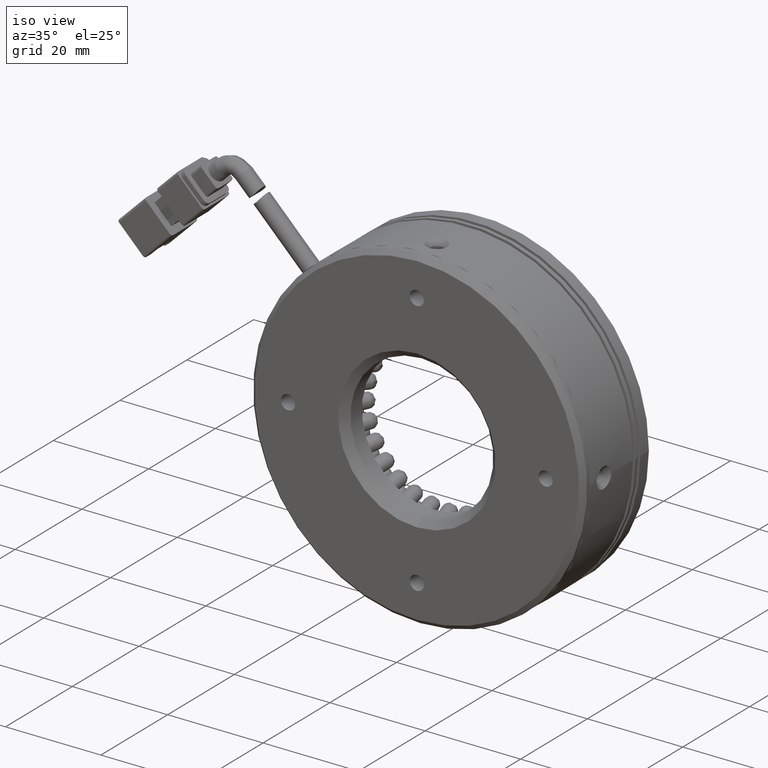
[diagram: clean part render]
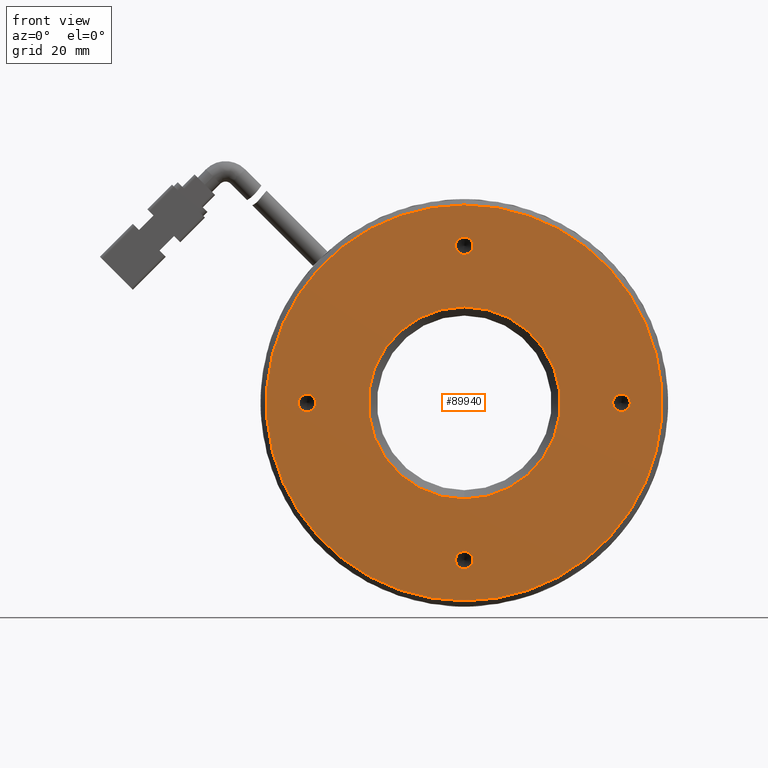
[diagram: tour spotlight — one face highlighted and labeled with its STEP entity id]
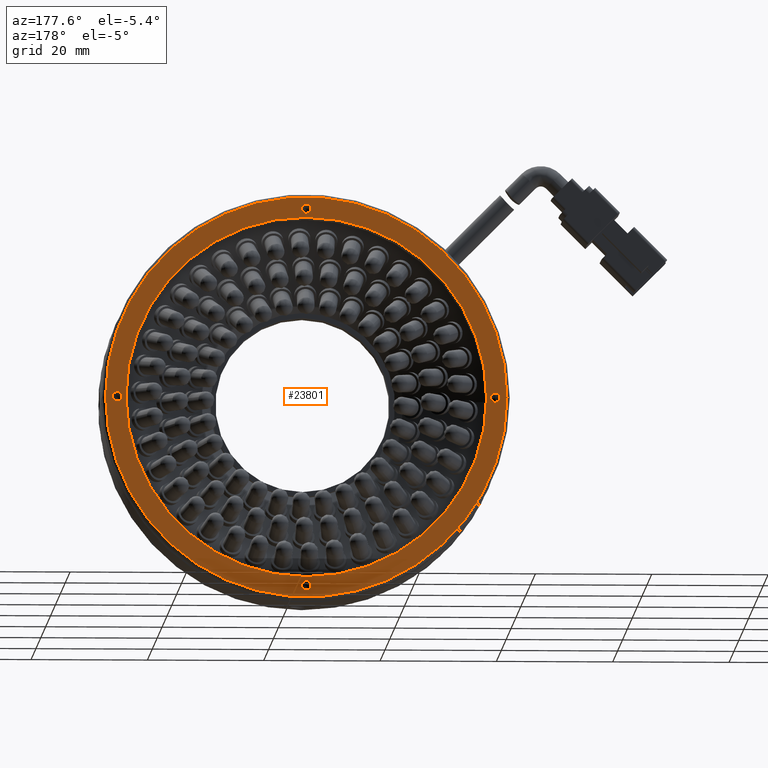
[diagram: tour spotlight — one face highlighted and labeled with its STEP entity id]
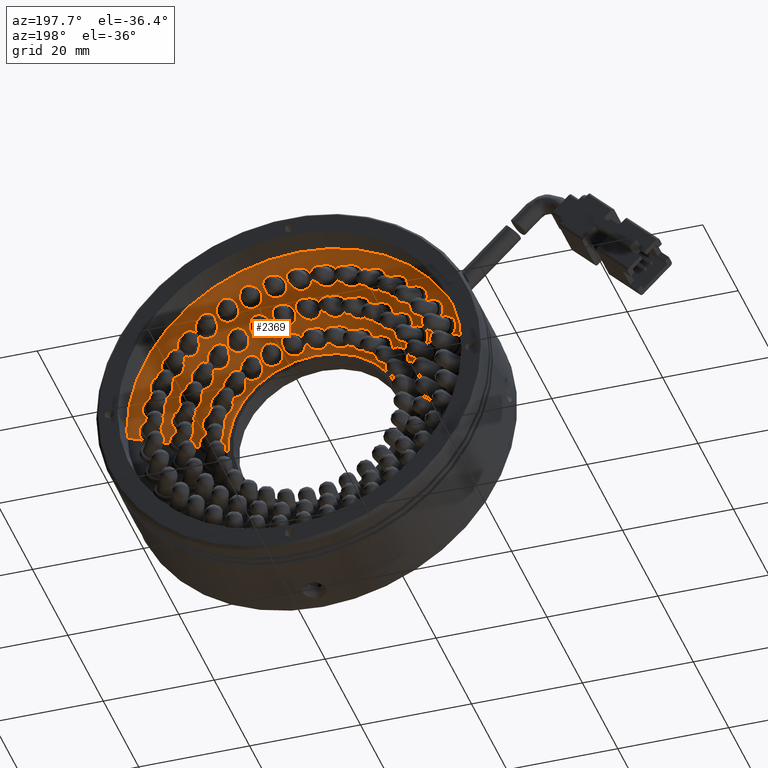
[diagram: tour spotlight — one face highlighted and labeled with its STEP entity id]
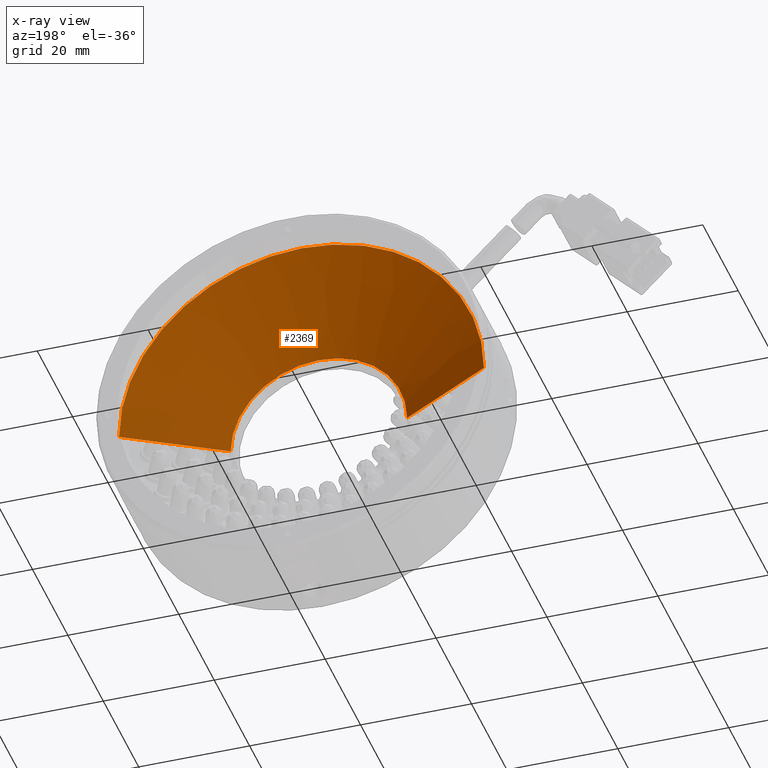
[diagram: x-ray of the same camera — body ghosted, this tour face saturated]
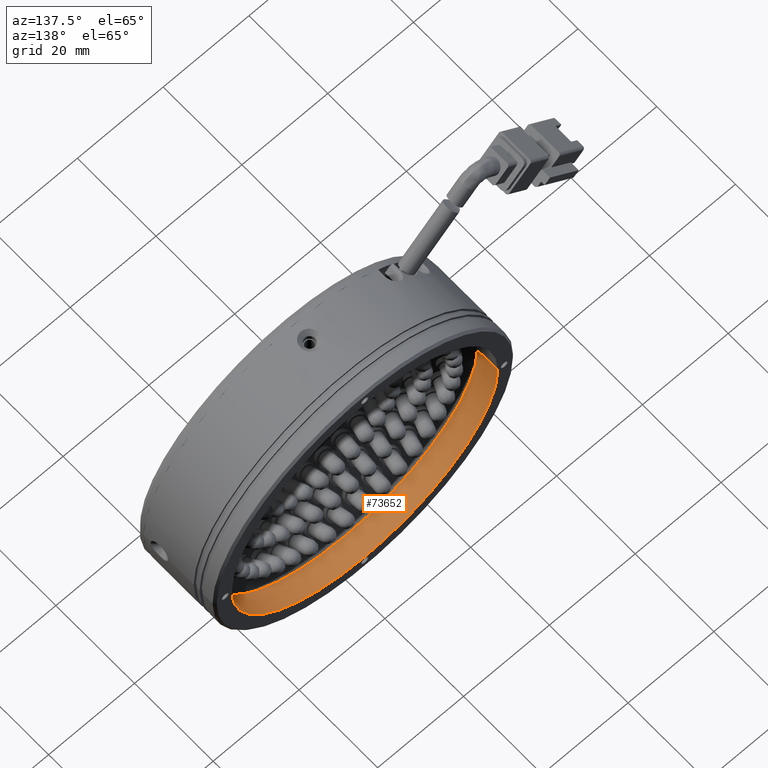
[diagram: tour spotlight — one face highlighted and labeled with its STEP entity id]
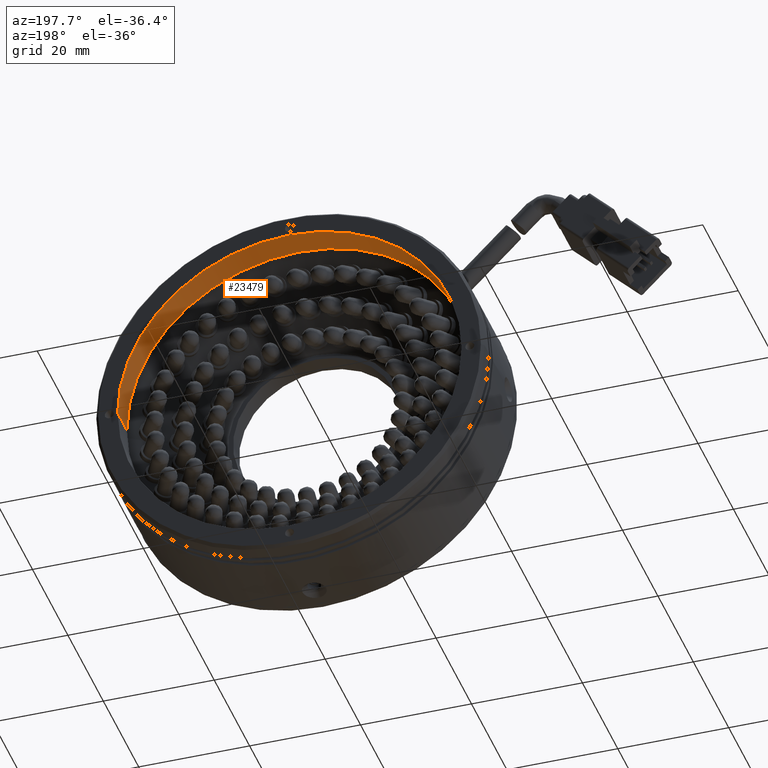
[diagram: tour spotlight — one face highlighted and labeled with its STEP entity id]
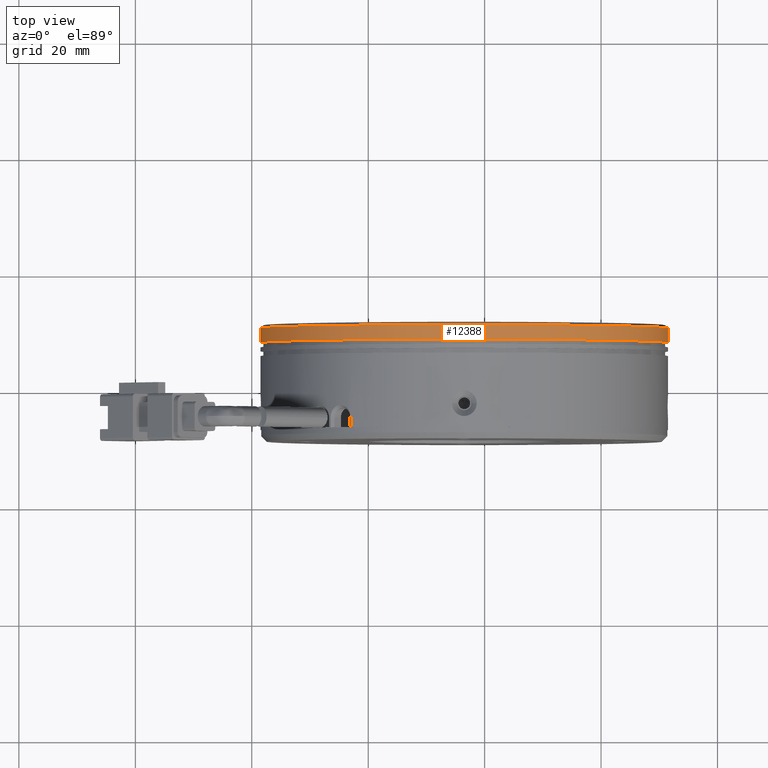
[diagram: tour spotlight — one face highlighted and labeled with its STEP entity id]
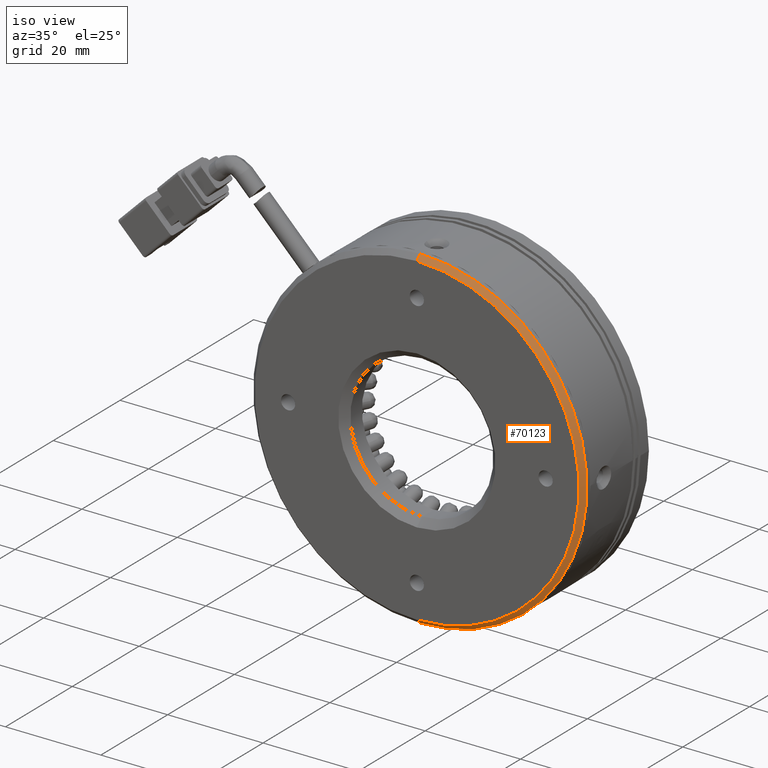
[diagram: tour spotlight — one face highlighted and labeled with its STEP entity id]
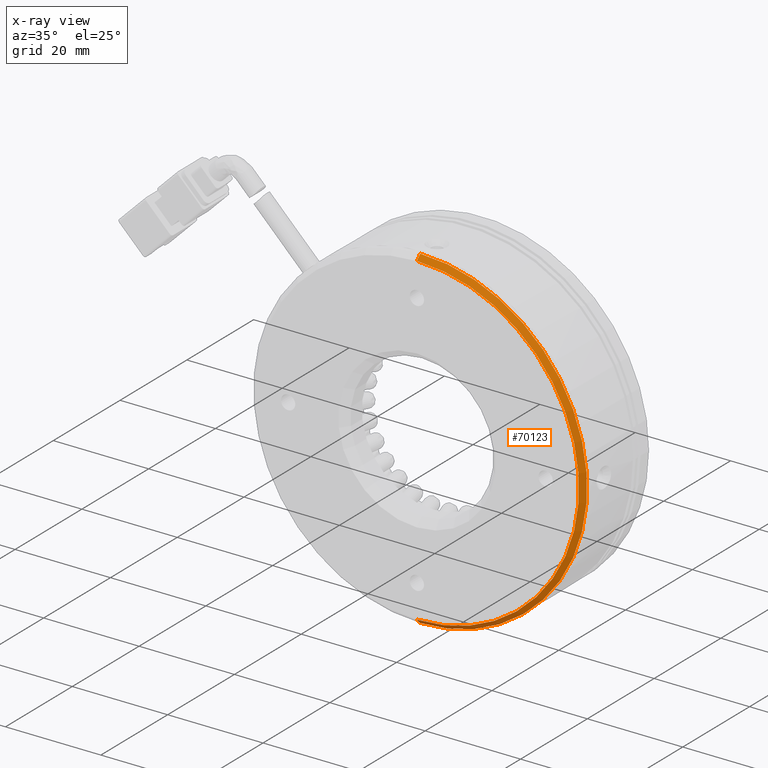
[diagram: x-ray of the same camera — body ghosted, this tour face saturated]
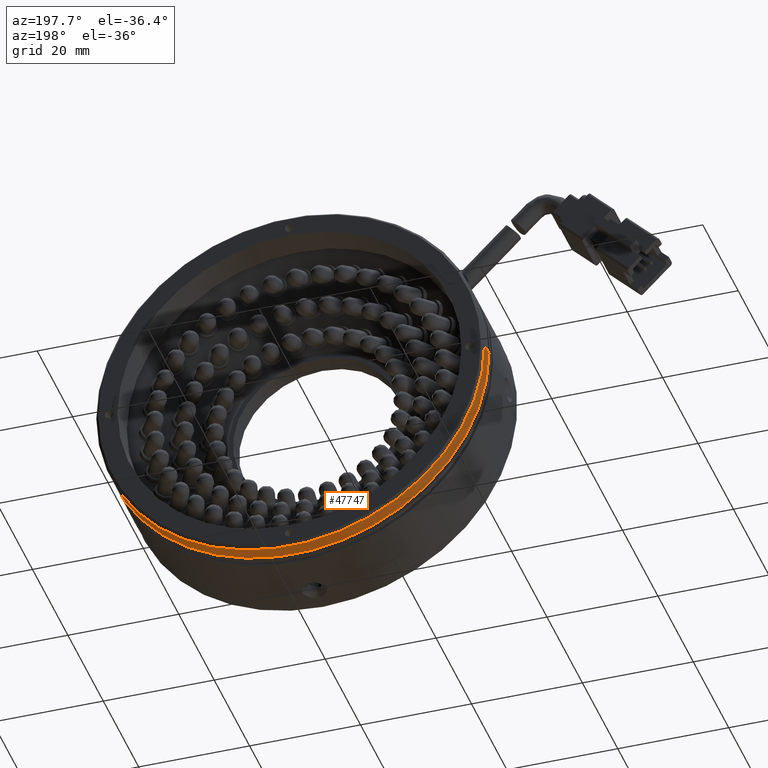
[diagram: tour spotlight — one face highlighted and labeled with its STEP entity id]
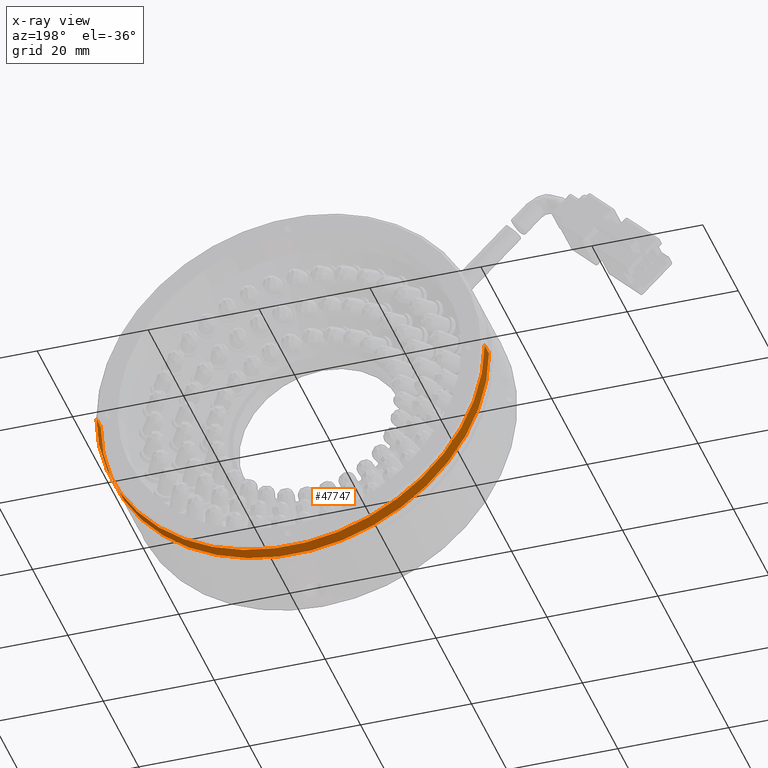
[diagram: x-ray of the same camera — body ghosted, this tour face saturated]
A machine part: a face-by-face anatomy tour. The part has 1954 B-rep faces; the first image is the clean iso view, then the 8 largest visible faces are spotlighted one at a time (largest first), each with its STEP entity span.

Face 1 — front view, entity #89940. In plain terms, the highlighted planar face has unit normal (0, -1, 0).
Definition (entity closure, byte-faithful):
#1160 = AXIS2_PLACEMENT_3D ( 'NONE', #22831, #71733, #29861 ) ;
#2184 = DIRECTION ( 'NONE',  ( 0.0000000000000000000, 0.0000000000000000000, 1.000000000000000000 ) ) ;
#5942 = CARTESIAN_POINT ( 'NONE',  ( -3.499229287090545300, 31.07623868994505800, -27.00000000000000000 ) ) ;
#6325 = EDGE_LOOP ( 'NONE', ( #90336, #84806 ) ) ;
#8530 = ORIENTED_EDGE ( 'NONE', *, *, #90792, .T. ) ;
#9294 = CARTESIAN_POINT ( 'NONE',  ( -30.49922928709055000, 31.07623868994505800, -1.499999999999998700 ) ) ;
#12976 = DIRECTION ( 'NONE',  ( 0.0000000000000000000, 0.0000000000000000000, -1.000000000000000000 ) ) ;
#13225 = AXIS2_PLACEMENT_3D ( 'NONE', #13335, #62259, #20390 ) ;
#13335 = CARTESIAN_POINT ( 'NONE',  ( -3.499229287090545300, 31.07623868994505800, -27.00000000000000000 ) ) ;
#15003 = EDGE_CURVE ( 'NONE', #77611, #71566, #39273, .T. ) ;
#15906 = FACE_BOUND ( 'NONE', #81980, .T. ) ;
#16010 = DIRECTION ( 'NONE',  ( -0.0000000000000000000, 1.000000000000000000, -0.0000000000000000000 ) ) ;
#17169 = EDGE_CURVE ( 'NONE', #86538, #20346, #76574, .T. ) ;
#17216 = DIRECTION ( 'NONE',  ( 0.0000000000000000000, -1.000000000000000000, 0.0000000000000000000 ) ) ;
#18074 = FACE_BOUND ( 'NONE', #54667, .T. ) ;
#18861 = EDGE_CURVE ( 'NONE', #90202, #36358, #21308, .T. ) ;
#18881 = CARTESIAN_POINT ( 'NONE',  ( -3.499229287090538600, 31.07623868994505000, 33.99999999999997900 ) ) ;
#19080 = ORIENTED_EDGE ( 'NONE', *, *, #40027, .T. ) ;
#19380 = CARTESIAN_POINT ( 'NONE',  ( -3.499229287090536400, 31.07623868994505800, 16.50000000000002800 ) ) ;
#19865 = DIRECTION ( 'NONE',  ( 0.0000000000000000000, 1.000000000000000000, 0.0000000000000000000 ) ) ;
#20212 = CARTESIAN_POINT ( 'NONE',  ( -3.499229287090538600, 31.07623868994505800, -16.50000000000002800 ) ) ;
#20346 = VERTEX_POINT ( 'NONE', #41644 ) ;
#20390 = DIRECTION ( 'NONE',  ( 0.0000000000000000000, 0.0000000000000000000, -1.000000000000000000 ) ) ;
#21308 = CIRCLE ( 'NONE', #69875, 16.50000000000002800 ) ;
#21490 = CIRCLE ( 'NONE', #65177, 1.500000000000001300 ) ;
#22831 = CARTESIAN_POINT ( 'NONE',  ( -3.499229287090545300, 31.07623868994505800, 27.00000000000000000 ) ) ;
#23568 = CIRCLE ( 'NONE', #54813, 16.50000000000002800 ) ;
#24273 = ORIENTED_EDGE ( 'NONE', *, *, #34858, .T. ) ;
#25298 = EDGE_LOOP ( 'NONE', ( #19080, #8530 ) ) ;
#26844 = CARTESIAN_POINT ( 'NONE',  ( -30.49922928709055000, 31.07623868994505800, 2.710505431213761100E-017 ) ) ;
#26864 = CARTESIAN_POINT ( 'NONE',  ( 23.50077071290945000, 31.07623868994505800, 1.500000000000001300 ) ) ;
#26934 = EDGE_CURVE ( 'NONE', #36035, #61749, #48530, .T. ) ;
#27255 = ORIENTED_EDGE ( 'NONE', *, *, #18861, .T. ) ;
#28003 = CIRCLE ( 'NONE', #69617, 1.499999999999998700 ) ;
#29034 = EDGE_CURVE ( 'NONE', #71566, #77611, #53093, .T. ) ;
#29661 = CARTESIAN_POINT ( 'NONE',  ( -3.499229287090545300, 31.07623868994505800, 28.50000000000000000 ) ) ;
#29786 = AXIS2_PLACEMENT_3D ( 'NONE', #35681, #84602, #42673 ) ;
#29861 = DIRECTION ( 'NONE',  ( 0.0000000000000000000, 0.0000000000000000000, -1.000000000000000000 ) ) ;
#31521 = EDGE_LOOP ( 'NONE', ( #62108, #90072 ) ) ;
#32043 = CIRCLE ( 'NONE', #36944, 33.99999999999997900 ) ;
#32556 = CARTESIAN_POINT ( 'NONE',  ( -3.499229287090534200, 31.07623868994505000, -33.99999999999997900 ) ) ;
#33864 = DIRECTION ( 'NONE',  ( 0.0000000000000000000, 0.0000000000000000000, -1.000000000000000000 ) ) ;
#33984 = CARTESIAN_POINT ( 'NONE',  ( -3.499229287090538600, 31.07623868994505800, 0.0000000000000000000 ) ) ;
#34181 = CARTESIAN_POINT ( 'NONE',  ( -3.499229287090538600, 31.07623868994505000, 0.0000000000000000000 ) ) ;
#34473 = FACE_OUTER_BOUND ( 'NONE', #25298, .T. ) ;
#34858 = EDGE_CURVE ( 'NONE', #36358, #90202, #23568, .T. ) ;
#35012 = CIRCLE ( 'NONE', #68608, 1.500000000000001300 ) ;
#35681 = CARTESIAN_POINT ( 'NONE',  ( -30.49922928709055000, 31.07623868994505800, 2.710505431213761100E-017 ) ) ;
#36035 = VERTEX_POINT ( 'NONE', #50342 ) ;
#36358 = VERTEX_POINT ( 'NONE', #19380 ) ;
#36455 = CARTESIAN_POINT ( 'NONE',  ( 23.50077071290945000, 31.07623868994505800, 0.0000000000000000000 ) ) ;
#36944 = AXIS2_PLACEMENT_3D ( 'NONE', #85987, #44082, #2184 ) ;
#39273 = CIRCLE ( 'NONE', #50054, 1.500000000000001300 ) ;
#40027 = EDGE_CURVE ( 'NONE', #77948, #63735, #32043, .T. ) ;
#40503 = DIRECTION ( 'NONE',  ( 0.0000000000000000000, 1.000000000000000000, 0.0000000000000000000 ) ) ;
#40997 = DIRECTION ( 'NONE',  ( 0.0000000000000000000, 0.0000000000000000000, -1.000000000000000000 ) ) ;
#41171 = DIRECTION ( 'NONE',  ( 0.0000000000000000000, 0.0000000000000000000, 1.000000000000000000 ) ) ;
#41340 = AXIS2_PLACEMENT_3D ( 'NONE', #34181, #83063, #41171 ) ;
#41644 = CARTESIAN_POINT ( 'NONE',  ( 23.50077071290945000, 31.07623868994505800, -1.500000000000001300 ) ) ;
#42673 = DIRECTION ( 'NONE',  ( 0.0000000000000000000, 0.0000000000000000000, -1.000000000000000000 ) ) ;
#43454 = DIRECTION ( 'NONE',  ( 0.0000000000000000000, 0.0000000000000000000, -1.000000000000000000 ) ) ;
#44082 = DIRECTION ( 'NONE',  ( 0.0000000000000000000, -1.000000000000000000, -0.0000000000000000000 ) ) ;
#44633 = ORIENTED_EDGE ( 'NONE', *, *, #17169, .T. ) ;
#48449 = CARTESIAN_POINT ( 'NONE',  ( -30.49922928709055000, 31.07623868994505800, 1.499999999999998700 ) ) ;
#48530 = CIRCLE ( 'NONE', #13225, 1.500000000000001300 ) ;
#50054 = AXIS2_PLACEMENT_3D ( 'NONE', #61712, #19865, #68773 ) ;
#50342 = CARTESIAN_POINT ( 'NONE',  ( -3.499229287090545300, 31.07623868994505800, -28.50000000000000000 ) ) ;
#50572 = CIRCLE ( 'NONE', #41340, 33.99999999999997900 ) ;
#51951 = VERTEX_POINT ( 'NONE', #9294 ) ;
#53070 = FACE_BOUND ( 'NONE', #57658, .T. ) ;
#53093 = CIRCLE ( 'NONE', #1160, 1.500000000000001300 ) ;
#54667 = EDGE_LOOP ( 'NONE', ( #27255, #24273 ) ) ;
#54792 = ORIENTED_EDGE ( 'NONE', *, *, #62219, .T. ) ;
#54810 = DIRECTION ( 'NONE',  ( 0.0000000000000000000, 1.000000000000000000, 0.0000000000000000000 ) ) ;
#54813 = AXIS2_PLACEMENT_3D ( 'NONE', #57838, #16010, #64903 ) ;
#56265 = ORIENTED_EDGE ( 'NONE', *, *, #26934, .T. ) ;
#56457 = AXIS2_PLACEMENT_3D ( 'NONE', #59053, #17216, #66101 ) ;
#56960 = CARTESIAN_POINT ( 'NONE',  ( -3.499229287090545300, 31.07623868994505800, -25.50000000000000000 ) ) ;
#57658 = EDGE_LOOP ( 'NONE', ( #54792, #44633 ) ) ;
#57838 = CARTESIAN_POINT ( 'NONE',  ( -3.499229287090538600, 31.07623868994505800, 0.0000000000000000000 ) ) ;
#59053 = CARTESIAN_POINT ( 'NONE',  ( -38.49922928709052200, 31.07623868994505800, 0.0000000000000000000 ) ) ;
#60783 = EDGE_CURVE ( 'NONE', #82686, #51951, #66880, .T. ) ;
#61248 = CARTESIAN_POINT ( 'NONE',  ( -3.499229287090545300, 31.07623868994505800, 25.50000000000000000 ) ) ;
#61712 = CARTESIAN_POINT ( 'NONE',  ( -3.499229287090545300, 31.07623868994505800, 27.00000000000000000 ) ) ;
#61749 = VERTEX_POINT ( 'NONE', #56960 ) ;
#62108 = ORIENTED_EDGE ( 'NONE', *, *, #79447, .T. ) ;
#62219 = EDGE_CURVE ( 'NONE', #20346, #86538, #35012, .T. ) ;
#62259 = DIRECTION ( 'NONE',  ( 0.0000000000000000000, 1.000000000000000000, 0.0000000000000000000 ) ) ;
#63735 = VERTEX_POINT ( 'NONE', #32556 ) ;
#64903 = DIRECTION ( 'NONE',  ( 0.0000000000000000000, 0.0000000000000000000, -1.000000000000000000 ) ) ;
#65177 = AXIS2_PLACEMENT_3D ( 'NONE', #5942, #54810, #12976 ) ;
#66101 = DIRECTION ( 'NONE',  ( 0.0000000000000000000, -0.0000000000000000000, -1.000000000000000000 ) ) ;
#66880 = CIRCLE ( 'NONE', #29786, 1.499999999999998700 ) ;
#68608 = AXIS2_PLACEMENT_3D ( 'NONE', #36455, #85364, #43454 ) ;
#68773 = DIRECTION ( 'NONE',  ( 0.0000000000000000000, 0.0000000000000000000, -1.000000000000000000 ) ) ;
#69617 = AXIS2_PLACEMENT_3D ( 'NONE', #26844, #75752, #33864 ) ;
#69875 = AXIS2_PLACEMENT_3D ( 'NONE', #33984, #82882, #40997 ) ;
#71566 = VERTEX_POINT ( 'NONE', #61248 ) ;
#71686 = FACE_BOUND ( 'NONE', #31521, .T. ) ;
#71733 = DIRECTION ( 'NONE',  ( 0.0000000000000000000, 1.000000000000000000, 0.0000000000000000000 ) ) ;
#72860 = PLANE ( 'NONE',  #56457 ) ;
#75752 = DIRECTION ( 'NONE',  ( 0.0000000000000000000, 1.000000000000000000, 0.0000000000000000000 ) ) ;
#76574 = CIRCLE ( 'NONE', #83620, 1.500000000000001300 ) ;
#77611 = VERTEX_POINT ( 'NONE', #29661 ) ;
#77948 = VERTEX_POINT ( 'NONE', #18881 ) ;
#79447 = EDGE_CURVE ( 'NONE', #51951, #82686, #28003, .T. ) ;
#81855 = ORIENTED_EDGE ( 'NONE', *, *, #89627, .T. ) ;
#81980 = EDGE_LOOP ( 'NONE', ( #56265, #81855 ) ) ;
#82400 = CARTESIAN_POINT ( 'NONE',  ( 23.50077071290945000, 31.07623868994505800, 0.0000000000000000000 ) ) ;
#82686 = VERTEX_POINT ( 'NONE', #48449 ) ;
#82882 = DIRECTION ( 'NONE',  ( -0.0000000000000000000, 1.000000000000000000, -0.0000000000000000000 ) ) ;
#83063 = DIRECTION ( 'NONE',  ( 0.0000000000000000000, -1.000000000000000000, -0.0000000000000000000 ) ) ;
#83620 = AXIS2_PLACEMENT_3D ( 'NONE', #82400, #40503, #89466 ) ;
#84602 = DIRECTION ( 'NONE',  ( 0.0000000000000000000, 1.000000000000000000, 0.0000000000000000000 ) ) ;
#84806 = ORIENTED_EDGE ( 'NONE', *, *, #15003, .T. ) ;
#85364 = DIRECTION ( 'NONE',  ( 0.0000000000000000000, 1.000000000000000000, 0.0000000000000000000 ) ) ;
#85987 = CARTESIAN_POINT ( 'NONE',  ( -3.499229287090538600, 31.07623868994505000, 0.0000000000000000000 ) ) ;
#86538 = VERTEX_POINT ( 'NONE', #26864 ) ;
#89466 = DIRECTION ( 'NONE',  ( 0.0000000000000000000, 0.0000000000000000000, -1.000000000000000000 ) ) ;
#89627 = EDGE_CURVE ( 'NONE', #61749, #36035, #21490, .T. ) ;
#89940 = ADVANCED_FACE ( 'NONE', ( #15906, #90293, #53070, #71686, #18074, #34473 ), #72860, .T. ) ;
#90072 = ORIENTED_EDGE ( 'NONE', *, *, #60783, .T. ) ;
#90202 = VERTEX_POINT ( 'NONE', #20212 ) ;
#90293 = FACE_BOUND ( 'NONE', #6325, .T. ) ;
#90336 = ORIENTED_EDGE ( 'NONE', *, *, #29034, .T. ) ;
#90792 = EDGE_CURVE ( 'NONE', #63735, #77948, #50572, .T. ) ;

Face 2 — auxiliary view, entity #23801. In plain terms, the highlighted planar face has unit normal (0, 1, 0).
Definition (entity closure, byte-faithful):
#839 = CIRCLE ( 'NONE', #81366, 31.00000000000000000 ) ;
#1770 = DIRECTION ( 'NONE',  ( -1.000000000000000000, 0.0000000000000000000, -1.942890293093821800E-016 ) ) ;
#2255 = VERTEX_POINT ( 'NONE', #38243 ) ;
#3440 = VERTEX_POINT ( 'NONE', #24920 ) ;
#4519 = AXIS2_PLACEMENT_3D ( 'NONE', #58058, #16250, #65129 ) ;
#4657 = DIRECTION ( 'NONE',  ( -1.000000000000000000, 0.0000000000000000000, -1.942890293093975900E-016 ) ) ;
#4756 = CARTESIAN_POINT ( 'NONE',  ( 29.00077071290950300, 51.07623868994505800, -3.330669073875469600E-013 ) ) ;
#5086 = FACE_BOUND ( 'NONE', #87316, .T. ) ;
#7634 = CARTESIAN_POINT ( 'NONE',  ( -3.499229287090502200, 51.07623868994505800, 32.49999999999998600 ) ) ;
#8819 = CARTESIAN_POINT ( 'NONE',  ( -3.499229287090489700, 51.07623868994505800, -32.50000000000000700 ) ) ;
#9039 = DIRECTION ( 'NONE',  ( -0.0000000000000000000, -1.000000000000000000, -0.0000000000000000000 ) ) ;
#9046 = AXIS2_PLACEMENT_3D ( 'NONE', #50958, #9039, #57925 ) ;
#9485 = CARTESIAN_POINT ( 'NONE',  ( -3.499229287090502200, 51.07623868994505800, 32.49999999999998600 ) ) ;
#9784 = DIRECTION ( 'NONE',  ( -0.0000000000000000000, -1.000000000000000000, -0.0000000000000000000 ) ) ;
#9851 = CIRCLE ( 'NONE', #63756, 0.7999999999999951600 ) ;
#10078 = DIRECTION ( 'NONE',  ( -0.0000000000000000000, -1.000000000000000000, -0.0000000000000000000 ) ) ;
#11687 = CARTESIAN_POINT ( 'NONE',  ( -2.699229287090490800, 51.07623868994505800, -32.50000000000000700 ) ) ;
#11772 = DIRECTION ( 'NONE',  ( -1.000000000000000000, 0.0000000000000000000, -1.942890293093821800E-016 ) ) ;
#12033 = EDGE_CURVE ( 'NONE', #37980, #45054, #73587, .T. ) ;
#12199 = CIRCLE ( 'NONE', #44358, 0.7999999999999947200 ) ;
#13346 = ORIENTED_EDGE ( 'NONE', *, *, #31946, .T. ) ;
#13709 = EDGE_LOOP ( 'NONE', ( #23936, #86688 ) ) ;
#14181 = AXIS2_PLACEMENT_3D ( 'NONE', #8819, #57714, #15899 ) ;
#14685 = DIRECTION ( 'NONE',  ( -1.000000000000000000, 0.0000000000000000000, 0.0000000000000000000 ) ) ;
#15899 = DIRECTION ( 'NONE',  ( -1.000000000000000000, 0.0000000000000000000, 0.0000000000000000000 ) ) ;
#16250 = DIRECTION ( 'NONE',  ( 0.0000000000000000000, 1.000000000000000000, -0.0000000000000000000 ) ) ;
#16521 = CARTESIAN_POINT ( 'NONE',  ( -37.99922928709050000, 51.07623868994505800, -9.434790045371908900E-015 ) ) ;
#16552 = DIRECTION ( 'NONE',  ( -1.000000000000000000, 0.0000000000000000000, 0.0000000000000000000 ) ) ;
#17126 = FACE_BOUND ( 'NONE', #28612, .T. ) ;
#17346 = VERTEX_POINT ( 'NONE', #11687 ) ;
#17469 = CARTESIAN_POINT ( 'NONE',  ( -35.99922928709050000, 51.07623868994505800, 1.040834085586084300E-013 ) ) ;
#17688 = EDGE_CURVE ( 'NONE', #74227, #38341, #839, .T. ) ;
#19891 = EDGE_CURVE ( 'NONE', #38341, #74227, #60339, .T. ) ;
#22691 = VERTEX_POINT ( 'NONE', #77705 ) ;
#23275 = CARTESIAN_POINT ( 'NONE',  ( 28.20077071290951000, 51.07623868994505800, -3.332223386109944400E-013 ) ) ;
#23801 = ADVANCED_FACE ( 'NONE', ( #70721, #89357, #52108, #5086, #17126, #33553 ), #28876, .T. ) ;
#23936 = ORIENTED_EDGE ( 'NONE', *, *, #19891, .T. ) ;
#24505 = DIRECTION ( 'NONE',  ( -1.000000000000000000, 0.0000000000000000000, -1.942890293093975900E-016 ) ) ;
#24920 = CARTESIAN_POINT ( 'NONE',  ( 31.00077071290950700, 51.07623868994505800, -2.359223927328467500E-016 ) ) ;
#24921 = EDGE_CURVE ( 'NONE', #17346, #84639, #85567, .T. ) ;
#27323 = DIRECTION ( 'NONE',  ( 0.0000000000000000000, 1.000000000000000000, -0.0000000000000000000 ) ) ;
#28108 = AXIS2_PLACEMENT_3D ( 'NONE', #69193, #27323, #76228 ) ;
#28612 = EDGE_LOOP ( 'NONE', ( #13346, #53403 ) ) ;
#28876 = PLANE ( 'NONE',  #64408 ) ;
#29178 = DIRECTION ( 'NONE',  ( 0.0000000000000000000, 1.000000000000000000, 0.0000000000000000000 ) ) ;
#29755 = EDGE_CURVE ( 'NONE', #33539, #2255, #88932, .T. ) ;
#31382 = EDGE_CURVE ( 'NONE', #3440, #84710, #72886, .T. ) ;
#31946 = EDGE_CURVE ( 'NONE', #63070, #22691, #83917, .T. ) ;
#33539 = VERTEX_POINT ( 'NONE', #87310 ) ;
#33553 = FACE_BOUND ( 'NONE', #59543, .T. ) ;
#33833 = ORIENTED_EDGE ( 'NONE', *, *, #86921, .T. ) ;
#35689 = CARTESIAN_POINT ( 'NONE',  ( -34.49922928709049300, 51.07623868994505800, -1.296185381249870100E-014 ) ) ;
#37980 = VERTEX_POINT ( 'NONE', #23275 ) ;
#38243 = CARTESIAN_POINT ( 'NONE',  ( -35.19922928709050300, 51.07623868994505800, 1.043368115259877400E-013 ) ) ;
#38341 = VERTEX_POINT ( 'NONE', #35689 ) ;
#38760 = CARTESIAN_POINT ( 'NONE',  ( -4.299229287090496700, 51.07623868994505800, 32.49999999999998600 ) ) ;
#39227 = CIRCLE ( 'NONE', #4519, 34.50000000000000000 ) ;
#39317 = ORIENTED_EDGE ( 'NONE', *, *, #12033, .T. ) ;
#43238 = ORIENTED_EDGE ( 'NONE', *, *, #56929, .T. ) ;
#43667 = DIRECTION ( 'NONE',  ( -0.0000000000000000000, -1.000000000000000000, -0.0000000000000000000 ) ) ;
#44358 = AXIS2_PLACEMENT_3D ( 'NONE', #9485, #58390, #16552 ) ;
#45054 = VERTEX_POINT ( 'NONE', #87864 ) ;
#45873 = EDGE_LOOP ( 'NONE', ( #65112, #33833 ) ) ;
#46560 = DIRECTION ( 'NONE',  ( -0.0000000000000000000, -1.000000000000000000, -0.0000000000000000000 ) ) ;
#47961 = AXIS2_PLACEMENT_3D ( 'NONE', #51978, #10078, #58976 ) ;
#48544 = EDGE_CURVE ( 'NONE', #2255, #33539, #63663, .T. ) ;
#49413 = ORIENTED_EDGE ( 'NONE', *, *, #24921, .T. ) ;
#50958 = CARTESIAN_POINT ( 'NONE',  ( -3.499229287090496400, 51.07623868994505800, -6.938893903907228400E-015 ) ) ;
#51318 = ORIENTED_EDGE ( 'NONE', *, *, #61030, .T. ) ;
#51703 = CARTESIAN_POINT ( 'NONE',  ( -3.499229287090496400, 51.07623868994505800, -6.938893903907228400E-015 ) ) ;
#51978 = CARTESIAN_POINT ( 'NONE',  ( -3.499229287090489700, 51.07623868994505800, -32.50000000000000700 ) ) ;
#52108 = FACE_BOUND ( 'NONE', #67416, .T. ) ;
#52395 = AXIS2_PLACEMENT_3D ( 'NONE', #17469, #66359, #24505 ) ;
#53403 = ORIENTED_EDGE ( 'NONE', *, *, #60428, .T. ) ;
#53649 = DIRECTION ( 'NONE',  ( -0.0000000000000000000, -1.000000000000000000, -0.0000000000000000000 ) ) ;
#55097 = AXIS2_PLACEMENT_3D ( 'NONE', #88471, #46560, #4657 ) ;
#56520 = DIRECTION ( 'NONE',  ( -0.0000000000000000000, -1.000000000000000000, -0.0000000000000000000 ) ) ;
#56929 = EDGE_CURVE ( 'NONE', #84639, #17346, #63611, .T. ) ;
#57714 = DIRECTION ( 'NONE',  ( -0.0000000000000000000, -1.000000000000000000, -0.0000000000000000000 ) ) ;
#57925 = DIRECTION ( 'NONE',  ( -1.000000000000000000, 0.0000000000000000000, -1.942890293094023700E-016 ) ) ;
#58058 = CARTESIAN_POINT ( 'NONE',  ( -3.499229287090496400, 51.07623868994505800, -6.938893903907228400E-015 ) ) ;
#58390 = DIRECTION ( 'NONE',  ( -0.0000000000000000000, -1.000000000000000000, -0.0000000000000000000 ) ) ;
#58609 = AXIS2_PLACEMENT_3D ( 'NONE', #7634, #56520, #14685 ) ;
#58691 = DIRECTION ( 'NONE',  ( -1.000000000000000000, 0.0000000000000000000, -1.942890293094023700E-016 ) ) ;
#58870 = ORIENTED_EDGE ( 'NONE', *, *, #48544, .T. ) ;
#58976 = DIRECTION ( 'NONE',  ( -1.000000000000000000, 0.0000000000000000000, 0.0000000000000000000 ) ) ;
#59543 = EDGE_LOOP ( 'NONE', ( #39317, #51318 ) ) ;
#60339 = CIRCLE ( 'NONE', #9046, 31.00000000000000000 ) ;
#60428 = EDGE_CURVE ( 'NONE', #22691, #63070, #12199, .T. ) ;
#61030 = EDGE_CURVE ( 'NONE', #45054, #37980, #9851, .T. ) ;
#63070 = VERTEX_POINT ( 'NONE', #38760 ) ;
#63611 = CIRCLE ( 'NONE', #47961, 0.7999999999999986000 ) ;
#63663 = CIRCLE ( 'NONE', #52395, 0.7999999999999951600 ) ;
#63756 = AXIS2_PLACEMENT_3D ( 'NONE', #4756, #53649, #11772 ) ;
#64408 = AXIS2_PLACEMENT_3D ( 'NONE', #71063, #29178, #78109 ) ;
#65112 = ORIENTED_EDGE ( 'NONE', *, *, #31382, .T. ) ;
#65129 = DIRECTION ( 'NONE',  ( 1.000000000000000000, 0.0000000000000000000, 1.942890293094023700E-016 ) ) ;
#66359 = DIRECTION ( 'NONE',  ( -0.0000000000000000000, -1.000000000000000000, -0.0000000000000000000 ) ) ;
#67416 = EDGE_LOOP ( 'NONE', ( #43238, #49413 ) ) ;
#69193 = CARTESIAN_POINT ( 'NONE',  ( -3.499229287090496400, 51.07623868994505800, -6.938893903907228400E-015 ) ) ;
#69552 = AXIS2_PLACEMENT_3D ( 'NONE', #85562, #43667, #1770 ) ;
#70721 = FACE_BOUND ( 'NONE', #13709, .T. ) ;
#71063 = CARTESIAN_POINT ( 'NONE',  ( -3.499229287090489300, 51.07623868994505800, -35.00000000000001400 ) ) ;
#72886 = CIRCLE ( 'NONE', #28108, 34.50000000000000000 ) ;
#73587 = CIRCLE ( 'NONE', #69552, 0.7999999999999951600 ) ;
#74227 = VERTEX_POINT ( 'NONE', #77883 ) ;
#76228 = DIRECTION ( 'NONE',  ( 1.000000000000000000, 0.0000000000000000000, 1.942890293094023700E-016 ) ) ;
#77705 = CARTESIAN_POINT ( 'NONE',  ( -2.699229287090507200, 51.07623868994505800, 32.49999999999998600 ) ) ;
#77883 = CARTESIAN_POINT ( 'NONE',  ( 27.50077071290950300, 51.07623868994505800, 2.880471082041037800E-015 ) ) ;
#78109 = DIRECTION ( 'NONE',  ( -1.000000000000000000, 0.0000000000000000000, -1.942890293094023500E-016 ) ) ;
#81366 = AXIS2_PLACEMENT_3D ( 'NONE', #51703, #9784, #58691 ) ;
#83917 = CIRCLE ( 'NONE', #58609, 0.7999999999999947200 ) ;
#84639 = VERTEX_POINT ( 'NONE', #85925 ) ;
#84710 = VERTEX_POINT ( 'NONE', #16521 ) ;
#85518 = ORIENTED_EDGE ( 'NONE', *, *, #29755, .T. ) ;
#85562 = CARTESIAN_POINT ( 'NONE',  ( 29.00077071290950300, 51.07623868994505800, -3.330669073875469600E-013 ) ) ;
#85567 = CIRCLE ( 'NONE', #14181, 0.7999999999999986000 ) ;
#85925 = CARTESIAN_POINT ( 'NONE',  ( -4.299229287090488700, 51.07623868994505800, -32.50000000000000700 ) ) ;
#86688 = ORIENTED_EDGE ( 'NONE', *, *, #17688, .T. ) ;
#86921 = EDGE_CURVE ( 'NONE', #84710, #3440, #39227, .T. ) ;
#87310 = CARTESIAN_POINT ( 'NONE',  ( -36.79922928709049000, 51.07623868994505800, 1.039279773351609100E-013 ) ) ;
#87316 = EDGE_LOOP ( 'NONE', ( #85518, #58870 ) ) ;
#87864 = CARTESIAN_POINT ( 'NONE',  ( 29.80077071290950000, 51.07623868994505800, -3.328135044201676600E-013 ) ) ;
#88471 = CARTESIAN_POINT ( 'NONE',  ( -35.99922928709050000, 51.07623868994505800, 1.040834085586084300E-013 ) ) ;
#88932 = CIRCLE ( 'NONE', #55097, 0.7999999999999951600 ) ;
#89357 = FACE_OUTER_BOUND ( 'NONE', #45873, .T. ) ;

Face 3 — auxiliary view, entity #2369. An x-ray twin of the same camera follows (body ghosted, this face saturated) — the face is partly hidden behind the body. In plain terms, the highlighted conical surface has half-angle 60 deg.
Definition (entity closure, byte-faithful):
#2062 = CARTESIAN_POINT ( 'NONE',  ( -3.499229287090496900, 34.51850366302609500, 0.0000000000000000000 ) ) ;
#2369 = ADVANCED_FACE ( 'NONE', ( #53233 ), #63046, .F. ) ;
#5054 = EDGE_CURVE ( 'NONE', #58920, #59342, #51995, .T. ) ;
#5492 = CARTESIAN_POINT ( 'NONE',  ( -19.39922928709049900, 34.51850366302609500, 0.0000000000000000000 ) ) ;
#9102 = DIRECTION ( 'NONE',  ( 0.0000000000000000000, 0.0000000000000000000, -1.000000000000000000 ) ) ;
#9384 = EDGE_CURVE ( 'NONE', #20582, #88189, #25119, .T. ) ;
#9595 = VECTOR ( 'NONE', #14062, 999.9999999999998900 ) ;
#10417 = CIRCLE ( 'NONE', #60171, 32.90000000000001300 ) ;
#11221 = AXIS2_PLACEMENT_3D ( 'NONE', #40337, #68161, #68480 ) ;
#14062 = DIRECTION ( 'NONE',  ( 0.8660254037844380400, 0.5000000000000012200, 1.060575238724906200E-016 ) ) ;
#15177 = EDGE_LOOP ( 'NONE', ( #44990, #74194, #16028, #87317, #89636, #33349 ) ) ;
#16028 = ORIENTED_EDGE ( 'NONE', *, *, #69034, .T. ) ;
#16418 = DIRECTION ( 'NONE',  ( 0.0000000000000000000, -1.000000000000000000, 0.0000000000000000000 ) ) ;
#18522 = DIRECTION ( 'NONE',  ( 0.0000000000000000000, -1.000000000000000000, 0.0000000000000000000 ) ) ;
#20005 = AXIS2_PLACEMENT_3D ( 'NONE', #68977, #27096, #76012 ) ;
#20582 = VERTEX_POINT ( 'NONE', #57826 ) ;
#21110 = CARTESIAN_POINT ( 'NONE',  ( 29.40077071290951600, 44.33345823924977900, 4.029087969194793600E-015 ) ) ;
#21662 = EDGE_CURVE ( 'NONE', #88189, #67955, #10417, .T. ) ;
#25119 = CIRCLE ( 'NONE', #20005, 32.90000000000001300 ) ;
#27096 = DIRECTION ( 'NONE',  ( 0.0000000000000000000, -1.000000000000000000, 0.0000000000000000000 ) ) ;
#28212 = LINE ( 'NONE', #21110, #9595 ) ;
#31593 = CARTESIAN_POINT ( 'NONE',  ( -3.499229287090492900, 44.33345823924977900, 32.90000000000001300 ) ) ;
#32394 = CIRCLE ( 'NONE', #67728, 15.90000000000000000 ) ;
#33349 = ORIENTED_EDGE ( 'NONE', *, *, #9384, .F. ) ;
#34204 = EDGE_CURVE ( 'NONE', #58920, #20582, #28212, .T. ) ;
#34656 = VECTOR ( 'NONE', #44609, 999.9999999999998900 ) ;
#37719 = CARTESIAN_POINT ( 'NONE',  ( 12.40077071290950400, 34.51850366302609500, 2.988138189919542900E-015 ) ) ;
#40337 = CARTESIAN_POINT ( 'NONE',  ( -3.499229287090496900, 44.33345823924977900, 0.0000000000000000000 ) ) ;
#40364 = VERTEX_POINT ( 'NONE', #5492 ) ;
#44609 = DIRECTION ( 'NONE',  ( -0.8660254037844380400, 0.5000000000000012200, 0.0000000000000000000 ) ) ;
#44990 = ORIENTED_EDGE ( 'NONE', *, *, #34204, .F. ) ;
#51003 = DIRECTION ( 'NONE',  ( 0.0000000000000000000, -1.000000000000000000, 0.0000000000000000000 ) ) ;
#51995 = CIRCLE ( 'NONE', #70140, 15.90000000000000000 ) ;
#53233 = FACE_OUTER_BOUND ( 'NONE', #15177, .T. ) ;
#57826 = CARTESIAN_POINT ( 'NONE',  ( 29.40077071290951600, 44.33345823924977900, 4.029087969194793600E-015 ) ) ;
#58260 = CARTESIAN_POINT ( 'NONE',  ( -3.499229287090496900, 44.33345823924977900, 0.0000000000000000000 ) ) ;
#58920 = VERTEX_POINT ( 'NONE', #37719 ) ;
#59342 = VERTEX_POINT ( 'NONE', #71849 ) ;
#60171 = AXIS2_PLACEMENT_3D ( 'NONE', #58260, #16418, #65295 ) ;
#60377 = CARTESIAN_POINT ( 'NONE',  ( -3.499229287090496900, 34.51850366302609500, 0.0000000000000000000 ) ) ;
#62409 = CARTESIAN_POINT ( 'NONE',  ( -36.39922928709050600, 44.33345823924977900, 0.0000000000000000000 ) ) ;
#63046 = CONICAL_SURFACE ( 'NONE', #11221, 32.90000000000001300, 1.047197551196596300 ) ;
#65295 = DIRECTION ( 'NONE',  ( 0.0000000000000000000, 0.0000000000000000000, -1.000000000000000000 ) ) ;
#65979 = CARTESIAN_POINT ( 'NONE',  ( -36.39922928709050600, 44.33345823924977900, 0.0000000000000000000 ) ) ;
#67417 = DIRECTION ( 'NONE',  ( 0.0000000000000000000, 0.0000000000000000000, -1.000000000000000000 ) ) ;
#67728 = AXIS2_PLACEMENT_3D ( 'NONE', #60377, #18522, #67417 ) ;
#67955 = VERTEX_POINT ( 'NONE', #62409 ) ;
#68161 = DIRECTION ( 'NONE',  ( 2.636357866226149200E-017, 1.000000000000000000, 0.0000000000000000000 ) ) ;
#68480 = DIRECTION ( 'NONE',  ( -1.000000000000000000, 0.0000000000000000000, 0.0000000000000000000 ) ) ;
#68977 = CARTESIAN_POINT ( 'NONE',  ( -3.499229287090496900, 44.33345823924977900, 0.0000000000000000000 ) ) ;
#69034 = EDGE_CURVE ( 'NONE', #59342, #40364, #32394, .T. ) ;
#70140 = AXIS2_PLACEMENT_3D ( 'NONE', #2062, #51003, #9102 ) ;
#71849 = CARTESIAN_POINT ( 'NONE',  ( -3.499229287090495100, 34.51850366302609500, 15.90000000000000000 ) ) ;
#71864 = LINE ( 'NONE', #65979, #34656 ) ;
#74194 = ORIENTED_EDGE ( 'NONE', *, *, #5054, .T. ) ;
#76012 = DIRECTION ( 'NONE',  ( 0.0000000000000000000, 0.0000000000000000000, -1.000000000000000000 ) ) ;
#79288 = EDGE_CURVE ( 'NONE', #40364, #67955, #71864, .T. ) ;
#87317 = ORIENTED_EDGE ( 'NONE', *, *, #79288, .T. ) ;
#88189 = VERTEX_POINT ( 'NONE', #31593 ) ;
#89636 = ORIENTED_EDGE ( 'NONE', *, *, #21662, .F. ) ;

Face 4 — auxiliary view, entity #73652. In plain terms, the highlighted cylindrical surface (partial cylindrical patch) has radius 31 mm, axis along (0, 1, 0).
Definition (entity closure, byte-faithful):
#5768 = VECTOR ( 'NONE', #58022, 1000.000000000000000 ) ;
#8581 = DIRECTION ( 'NONE',  ( 0.0000000000000000000, 1.000000000000000000, 0.0000000000000000000 ) ) ;
#9039 = DIRECTION ( 'NONE',  ( -0.0000000000000000000, -1.000000000000000000, -0.0000000000000000000 ) ) ;
#9046 = AXIS2_PLACEMENT_3D ( 'NONE', #50958, #9039, #57925 ) ;
#9132 = CARTESIAN_POINT ( 'NONE',  ( 27.50077071290950300, 49.23205631493804200, 2.880471082041037800E-015 ) ) ;
#10970 = FACE_OUTER_BOUND ( 'NONE', #69063, .T. ) ;
#11654 = DIRECTION ( 'NONE',  ( 0.0000000000000000000, -1.000000000000000000, 0.0000000000000000000 ) ) ;
#14626 = CARTESIAN_POINT ( 'NONE',  ( 27.50077071290950300, 45.87623868994506200, 2.880471082041037800E-015 ) ) ;
#15180 = VERTEX_POINT ( 'NONE', #14626 ) ;
#17282 = AXIS2_PLACEMENT_3D ( 'NONE', #53540, #11654, #60566 ) ;
#18101 = ORIENTED_EDGE ( 'NONE', *, *, #75155, .T. ) ;
#19891 = EDGE_CURVE ( 'NONE', #38341, #74227, #60339, .T. ) ;
#20785 = CYLINDRICAL_SURFACE ( 'NONE', #39598, 31.00000000000000000 ) ;
#21628 = VERTEX_POINT ( 'NONE', #29874 ) ;
#23171 = ORIENTED_EDGE ( 'NONE', *, *, #19891, .F. ) ;
#29874 = CARTESIAN_POINT ( 'NONE',  ( -3.499229287090494200, 45.87623868994506200, -31.00000000000000700 ) ) ;
#31102 = AXIS2_PLACEMENT_3D ( 'NONE', #82887, #41000, #89964 ) ;
#31839 = EDGE_CURVE ( 'NONE', #57619, #38341, #66469, .T. ) ;
#35689 = CARTESIAN_POINT ( 'NONE',  ( -34.49922928709049300, 51.07623868994505800, -1.296185381249870100E-014 ) ) ;
#38341 = VERTEX_POINT ( 'NONE', #35689 ) ;
#39598 = AXIS2_PLACEMENT_3D ( 'NONE', #85336, #8581, #50820 ) ;
#41000 = DIRECTION ( 'NONE',  ( 0.0000000000000000000, -1.000000000000000000, 0.0000000000000000000 ) ) ;
#41502 = CIRCLE ( 'NONE', #31102, 31.00000000000000000 ) ;
#50820 = DIRECTION ( 'NONE',  ( -1.000000000000000000, 0.0000000000000000000, -1.942890293094023700E-016 ) ) ;
#50958 = CARTESIAN_POINT ( 'NONE',  ( -3.499229287090496400, 51.07623868994505800, -6.938893903907228400E-015 ) ) ;
#53540 = CARTESIAN_POINT ( 'NONE',  ( -3.499229287090496400, 45.87623868994506200, -6.938893903907228400E-015 ) ) ;
#57619 = VERTEX_POINT ( 'NONE', #67295 ) ;
#57733 = ORIENTED_EDGE ( 'NONE', *, *, #90086, .T. ) ;
#57925 = DIRECTION ( 'NONE',  ( -1.000000000000000000, 0.0000000000000000000, -1.942890293094023700E-016 ) ) ;
#58022 = DIRECTION ( 'NONE',  ( 0.0000000000000000000, 1.000000000000000000, 0.0000000000000000000 ) ) ;
#59363 = LINE ( 'NONE', #9132, #5768 ) ;
#60339 = CIRCLE ( 'NONE', #9046, 31.00000000000000000 ) ;
#60566 = DIRECTION ( 'NONE',  ( 1.000000000000000000, 0.0000000000000000000, 1.942890293094023500E-016 ) ) ;
#63937 = CIRCLE ( 'NONE', #17282, 31.00000000000000000 ) ;
#66469 = LINE ( 'NONE', #81954, #85075 ) ;
#67295 = CARTESIAN_POINT ( 'NONE',  ( -34.49922928709049300, 45.87623868994506200, -1.296185381249870100E-014 ) ) ;
#69063 = EDGE_LOOP ( 'NONE', ( #18101, #57733, #85823, #23171, #74514 ) ) ;
#73652 = ADVANCED_FACE ( 'NONE', ( #10970 ), #20785, .F. ) ;
#74227 = VERTEX_POINT ( 'NONE', #77883 ) ;
#74514 = ORIENTED_EDGE ( 'NONE', *, *, #31839, .F. ) ;
#74661 = DIRECTION ( 'NONE',  ( 0.0000000000000000000, 1.000000000000000000, 0.0000000000000000000 ) ) ;
#75155 = EDGE_CURVE ( 'NONE', #57619, #21628, #41502, .T. ) ;
#77660 = EDGE_CURVE ( 'NONE', #15180, #74227, #59363, .T. ) ;
#77883 = CARTESIAN_POINT ( 'NONE',  ( 27.50077071290950300, 51.07623868994505800, 2.880471082041037800E-015 ) ) ;
#81954 = CARTESIAN_POINT ( 'NONE',  ( -34.49922928709049300, 49.23205631493804200, -1.296185381249870100E-014 ) ) ;
#82887 = CARTESIAN_POINT ( 'NONE',  ( -3.499229287090496400, 45.87623868994506200, -6.938893903907228400E-015 ) ) ;
#85075 = VECTOR ( 'NONE', #74661, 1000.000000000000000 ) ;
#85336 = CARTESIAN_POINT ( 'NONE',  ( -3.499229287090496400, 49.23205631493804200, -6.938893903907228400E-015 ) ) ;
#85823 = ORIENTED_EDGE ( 'NONE', *, *, #77660, .T. ) ;
#89964 = DIRECTION ( 'NONE',  ( 1.000000000000000000, 0.0000000000000000000, 1.942890293094023500E-016 ) ) ;
#90086 = EDGE_CURVE ( 'NONE', #21628, #15180, #63937, .T. ) ;

Face 5 — auxiliary view, entity #23479. In plain terms, the highlighted cylindrical surface (partial cylindrical patch) has radius 31 mm, axis along (0, 1, 0).
Definition (entity closure, byte-faithful):
#839 = CIRCLE ( 'NONE', #81366, 31.00000000000000000 ) ;
#3448 = EDGE_CURVE ( 'NONE', #54546, #57619, #16796, .T. ) ;
#4106 = DIRECTION ( 'NONE',  ( 0.0000000000000000000, -1.000000000000000000, 0.0000000000000000000 ) ) ;
#5768 = VECTOR ( 'NONE', #58022, 1000.000000000000000 ) ;
#7382 = ORIENTED_EDGE ( 'NONE', *, *, #17688, .F. ) ;
#9132 = CARTESIAN_POINT ( 'NONE',  ( 27.50077071290950300, 49.23205631493804200, 2.880471082041037800E-015 ) ) ;
#9784 = DIRECTION ( 'NONE',  ( -0.0000000000000000000, -1.000000000000000000, -0.0000000000000000000 ) ) ;
#14598 = DIRECTION ( 'NONE',  ( 0.0000000000000000000, -1.000000000000000000, 0.0000000000000000000 ) ) ;
#14626 = CARTESIAN_POINT ( 'NONE',  ( 27.50077071290950300, 45.87623868994506200, 2.880471082041037800E-015 ) ) ;
#15180 = VERTEX_POINT ( 'NONE', #14626 ) ;
#16796 = CIRCLE ( 'NONE', #30130, 31.00000000000000000 ) ;
#16879 = EDGE_CURVE ( 'NONE', #15180, #54546, #71324, .T. ) ;
#17688 = EDGE_CURVE ( 'NONE', #74227, #38341, #839, .T. ) ;
#23479 = ADVANCED_FACE ( 'NONE', ( #58953 ), #87431, .F. ) ;
#28537 = CARTESIAN_POINT ( 'NONE',  ( -3.499229287090502200, 45.87623868994506200, 30.99999999999999300 ) ) ;
#28950 = ORIENTED_EDGE ( 'NONE', *, *, #16879, .T. ) ;
#30130 = AXIS2_PLACEMENT_3D ( 'NONE', #45989, #4106, #53012 ) ;
#31839 = EDGE_CURVE ( 'NONE', #57619, #38341, #66469, .T. ) ;
#32654 = AXIS2_PLACEMENT_3D ( 'NONE', #56432, #14598, #63499 ) ;
#34031 = ORIENTED_EDGE ( 'NONE', *, *, #31839, .T. ) ;
#35689 = CARTESIAN_POINT ( 'NONE',  ( -34.49922928709049300, 51.07623868994505800, -1.296185381249870100E-014 ) ) ;
#38341 = VERTEX_POINT ( 'NONE', #35689 ) ;
#45989 = CARTESIAN_POINT ( 'NONE',  ( -3.499229287090496400, 45.87623868994506200, -6.938893903907228400E-015 ) ) ;
#51703 = CARTESIAN_POINT ( 'NONE',  ( -3.499229287090496400, 51.07623868994505800, -6.938893903907228400E-015 ) ) ;
#53012 = DIRECTION ( 'NONE',  ( 1.000000000000000000, 0.0000000000000000000, 1.942890293094023500E-016 ) ) ;
#54546 = VERTEX_POINT ( 'NONE', #28537 ) ;
#56432 = CARTESIAN_POINT ( 'NONE',  ( -3.499229287090496400, 45.87623868994506200, -6.938893903907228400E-015 ) ) ;
#57619 = VERTEX_POINT ( 'NONE', #67295 ) ;
#58022 = DIRECTION ( 'NONE',  ( 0.0000000000000000000, 1.000000000000000000, 0.0000000000000000000 ) ) ;
#58691 = DIRECTION ( 'NONE',  ( -1.000000000000000000, 0.0000000000000000000, -1.942890293094023700E-016 ) ) ;
#58953 = FACE_OUTER_BOUND ( 'NONE', #86926, .T. ) ;
#59363 = LINE ( 'NONE', #9132, #5768 ) ;
#59788 = CARTESIAN_POINT ( 'NONE',  ( -3.499229287090496400, 49.23205631493804200, -6.938893903907228400E-015 ) ) ;
#63205 = AXIS2_PLACEMENT_3D ( 'NONE', #59788, #88282, #67426 ) ;
#63499 = DIRECTION ( 'NONE',  ( 1.000000000000000000, 0.0000000000000000000, 1.942890293094023500E-016 ) ) ;
#66469 = LINE ( 'NONE', #81954, #85075 ) ;
#67295 = CARTESIAN_POINT ( 'NONE',  ( -34.49922928709049300, 45.87623868994506200, -1.296185381249870100E-014 ) ) ;
#67426 = DIRECTION ( 'NONE',  ( -1.000000000000000000, 0.0000000000000000000, -1.942890293094023700E-016 ) ) ;
#67896 = ORIENTED_EDGE ( 'NONE', *, *, #3448, .T. ) ;
#71324 = CIRCLE ( 'NONE', #32654, 31.00000000000000000 ) ;
#73132 = ORIENTED_EDGE ( 'NONE', *, *, #77660, .F. ) ;
#74227 = VERTEX_POINT ( 'NONE', #77883 ) ;
#74661 = DIRECTION ( 'NONE',  ( 0.0000000000000000000, 1.000000000000000000, 0.0000000000000000000 ) ) ;
#77660 = EDGE_CURVE ( 'NONE', #15180, #74227, #59363, .T. ) ;
#77883 = CARTESIAN_POINT ( 'NONE',  ( 27.50077071290950300, 51.07623868994505800, 2.880471082041037800E-015 ) ) ;
#81366 = AXIS2_PLACEMENT_3D ( 'NONE', #51703, #9784, #58691 ) ;
#81954 = CARTESIAN_POINT ( 'NONE',  ( -34.49922928709049300, 49.23205631493804200, -1.296185381249870100E-014 ) ) ;
#85075 = VECTOR ( 'NONE', #74661, 1000.000000000000000 ) ;
#86926 = EDGE_LOOP ( 'NONE', ( #73132, #28950, #67896, #34031, #7382 ) ) ;
#87431 = CYLINDRICAL_SURFACE ( 'NONE', #63205, 31.00000000000000000 ) ;
#88282 = DIRECTION ( 'NONE',  ( 0.0000000000000000000, 1.000000000000000000, 0.0000000000000000000 ) ) ;

Face 6 — top view, entity #12388. In plain terms, the highlighted cylindrical surface (partial cylindrical patch) has radius 35 mm, axis along (0, 1, 0).
Definition (entity closure, byte-faithful):
#1843 = EDGE_CURVE ( 'NONE', #88919, #83546, #22124, .T. ) ;
#3512 = VECTOR ( 'NONE', #25951, 1000.000000000000000 ) ;
#4479 = VECTOR ( 'NONE', #57386, 1000.000000000000000 ) ;
#4874 = CARTESIAN_POINT ( 'NONE',  ( 31.50077071290951400, 50.57623868994505800, 4.147485918937592700E-015 ) ) ;
#4921 = AXIS2_PLACEMENT_3D ( 'NONE', #12987, #61893, #20031 ) ;
#5974 = ORIENTED_EDGE ( 'NONE', *, *, #85436, .F. ) ;
#7197 = CARTESIAN_POINT ( 'NONE',  ( -38.49922928709050800, 48.07623868994505000, -1.373900992973631200E-014 ) ) ;
#9074 = EDGE_CURVE ( 'NONE', #35928, #30074, #23098, .T. ) ;
#9934 = FACE_OUTER_BOUND ( 'NONE', #89311, .T. ) ;
#12388 = ADVANCED_FACE ( 'NONE', ( #9934 ), #75592, .T. ) ;
#12987 = CARTESIAN_POINT ( 'NONE',  ( -3.499229287090496400, 48.07623868994505000, -6.938893903907228400E-015 ) ) ;
#20031 = DIRECTION ( 'NONE',  ( -1.000000000000000000, 0.0000000000000000000, -1.942890293094023500E-016 ) ) ;
#22124 = LINE ( 'NONE', #74868, #3512 ) ;
#22736 = CARTESIAN_POINT ( 'NONE',  ( -38.49922928709050800, 50.57623868994505800, -1.373900992973631200E-014 ) ) ;
#23098 = LINE ( 'NONE', #85244, #4479 ) ;
#24539 = CIRCLE ( 'NONE', #49261, 35.00000000000000700 ) ;
#25951 = DIRECTION ( 'NONE',  ( 0.0000000000000000000, 1.000000000000000000, 0.0000000000000000000 ) ) ;
#29996 = DIRECTION ( 'NONE',  ( 0.0000000000000000000, 1.000000000000000000, -0.0000000000000000000 ) ) ;
#30074 = VERTEX_POINT ( 'NONE', #22736 ) ;
#35928 = VERTEX_POINT ( 'NONE', #7197 ) ;
#38629 = DIRECTION ( 'NONE',  ( 0.0000000000000000000, 1.000000000000000000, 0.0000000000000000000 ) ) ;
#45639 = CARTESIAN_POINT ( 'NONE',  ( -3.499229287090496400, 49.23205631493804200, -6.938893903907228400E-015 ) ) ;
#46120 = CARTESIAN_POINT ( 'NONE',  ( 31.50077071290951400, 48.07623868994505000, 4.147485918937592700E-015 ) ) ;
#47323 = ORIENTED_EDGE ( 'NONE', *, *, #9074, .F. ) ;
#49261 = AXIS2_PLACEMENT_3D ( 'NONE', #71865, #29996, #78900 ) ;
#54879 = AXIS2_PLACEMENT_3D ( 'NONE', #45639, #38629, #73801 ) ;
#57386 = DIRECTION ( 'NONE',  ( 0.0000000000000000000, 1.000000000000000000, 0.0000000000000000000 ) ) ;
#61282 = CIRCLE ( 'NONE', #4921, 35.00000000000000700 ) ;
#61893 = DIRECTION ( 'NONE',  ( -0.0000000000000000000, -1.000000000000000000, -0.0000000000000000000 ) ) ;
#66451 = ORIENTED_EDGE ( 'NONE', *, *, #1843, .T. ) ;
#66565 = EDGE_CURVE ( 'NONE', #30074, #83546, #24539, .T. ) ;
#71865 = CARTESIAN_POINT ( 'NONE',  ( -3.499229287090496400, 50.57623868994505800, -6.938893903907228400E-015 ) ) ;
#73801 = DIRECTION ( 'NONE',  ( -1.000000000000000000, 0.0000000000000000000, -1.942890293094023500E-016 ) ) ;
#74868 = CARTESIAN_POINT ( 'NONE',  ( 31.50077071290951400, 49.23205631493804200, 4.147485918937592700E-015 ) ) ;
#75592 = CYLINDRICAL_SURFACE ( 'NONE', #54879, 35.00000000000000700 ) ;
#78900 = DIRECTION ( 'NONE',  ( 1.000000000000000000, 0.0000000000000000000, 1.942890293094023700E-016 ) ) ;
#83546 = VERTEX_POINT ( 'NONE', #4874 ) ;
#85244 = CARTESIAN_POINT ( 'NONE',  ( -38.49922928709050800, 49.23205631493804200, -1.373900992973631200E-014 ) ) ;
#85436 = EDGE_CURVE ( 'NONE', #88919, #35928, #61282, .T. ) ;
#88919 = VERTEX_POINT ( 'NONE', #46120 ) ;
#89311 = EDGE_LOOP ( 'NONE', ( #5974, #66451, #90119, #47323 ) ) ;
#90119 = ORIENTED_EDGE ( 'NONE', *, *, #66565, .F. ) ;

Face 7 — iso view, entity #70123. An x-ray twin of the same camera follows (body ghosted, this face saturated) — the face is partly hidden behind the body. In plain terms, the highlighted conical surface has half-angle 45 deg.
Definition (entity closure, byte-faithful):
#1506 = DIRECTION ( 'NONE',  ( 0.0000000000000000000, 0.0000000000000000000, 1.000000000000000000 ) ) ;
#11618 = EDGE_CURVE ( 'NONE', #77948, #63573, #38732, .T. ) ;
#12701 = DIRECTION ( 'NONE',  ( 0.0000000000000000000, 0.0000000000000000000, 1.000000000000000000 ) ) ;
#18752 = CARTESIAN_POINT ( 'NONE',  ( -3.499229287090534200, 32.07623868994506500, -34.99999999999999300 ) ) ;
#18881 = CARTESIAN_POINT ( 'NONE',  ( -3.499229287090538600, 31.07623868994505000, 33.99999999999997900 ) ) ;
#19458 = DIRECTION ( 'NONE',  ( -0.0000000000000000000, 1.000000000000000000, 0.0000000000000000000 ) ) ;
#20127 = VECTOR ( 'NONE', #45571, 1000.000000000000000 ) ;
#22646 = VECTOR ( 'NONE', #81733, 1000.000000000000000 ) ;
#24508 = CARTESIAN_POINT ( 'NONE',  ( -3.499229287090538600, 32.07623868994506500, 34.99999999999999300 ) ) ;
#26330 = ORIENTED_EDGE ( 'NONE', *, *, #41541, .T. ) ;
#27550 = CARTESIAN_POINT ( 'NONE',  ( -3.499229287090534200, 32.07623868994506500, -34.99999999999999300 ) ) ;
#32556 = CARTESIAN_POINT ( 'NONE',  ( -3.499229287090534200, 31.07623868994505000, -33.99999999999997900 ) ) ;
#34181 = CARTESIAN_POINT ( 'NONE',  ( -3.499229287090538600, 31.07623868994505000, 0.0000000000000000000 ) ) ;
#38732 = LINE ( 'NONE', #24508, #20127 ) ;
#39605 = FACE_OUTER_BOUND ( 'NONE', #73791, .T. ) ;
#41171 = DIRECTION ( 'NONE',  ( 0.0000000000000000000, 0.0000000000000000000, 1.000000000000000000 ) ) ;
#41340 = AXIS2_PLACEMENT_3D ( 'NONE', #34181, #83063, #41171 ) ;
#41541 = EDGE_CURVE ( 'NONE', #63735, #59207, #78434, .T. ) ;
#43384 = DIRECTION ( 'NONE',  ( 0.0000000000000000000, -1.000000000000000000, 0.0000000000000000000 ) ) ;
#45571 = DIRECTION ( 'NONE',  ( 0.0000000000000000000, 0.7071067811865504600, 0.7071067811865445800 ) ) ;
#48809 = EDGE_CURVE ( 'NONE', #59207, #63573, #74523, .T. ) ;
#50572 = CIRCLE ( 'NONE', #41340, 33.99999999999997900 ) ;
#52549 = ORIENTED_EDGE ( 'NONE', *, *, #48809, .T. ) ;
#54801 = ORIENTED_EDGE ( 'NONE', *, *, #90792, .F. ) ;
#59207 = VERTEX_POINT ( 'NONE', #27550 ) ;
#61300 = CARTESIAN_POINT ( 'NONE',  ( -3.499229287090538600, 32.07623868994506500, 0.0000000000000000000 ) ) ;
#63573 = VERTEX_POINT ( 'NONE', #79038 ) ;
#63735 = VERTEX_POINT ( 'NONE', #32556 ) ;
#68034 = CONICAL_SURFACE ( 'NONE', #69626, 34.99999999999999300, 0.7853981633974441700 ) ;
#69626 = AXIS2_PLACEMENT_3D ( 'NONE', #61300, #19458, #12701 ) ;
#70123 = ADVANCED_FACE ( 'NONE', ( #39605 ), #68034, .T. ) ;
#72367 = AXIS2_PLACEMENT_3D ( 'NONE', #85292, #43384, #1506 ) ;
#73791 = EDGE_LOOP ( 'NONE', ( #54801, #26330, #52549, #84178 ) ) ;
#74523 = CIRCLE ( 'NONE', #72367, 34.99999999999999300 ) ;
#77948 = VERTEX_POINT ( 'NONE', #18881 ) ;
#78434 = LINE ( 'NONE', #18752, #22646 ) ;
#79038 = CARTESIAN_POINT ( 'NONE',  ( -3.499229287090538600, 32.07623868994506500, 34.99999999999999300 ) ) ;
#81733 = DIRECTION ( 'NONE',  ( 8.659560562354897100E-017, 0.7071067811865504600, -0.7071067811865445800 ) ) ;
#83063 = DIRECTION ( 'NONE',  ( 0.0000000000000000000, -1.000000000000000000, -0.0000000000000000000 ) ) ;
#84178 = ORIENTED_EDGE ( 'NONE', *, *, #11618, .F. ) ;
#85292 = CARTESIAN_POINT ( 'NONE',  ( -3.499229287090538600, 32.07623868994506500, 0.0000000000000000000 ) ) ;
#90792 = EDGE_CURVE ( 'NONE', #63735, #77948, #50572, .T. ) ;

Face 8 — auxiliary view, entity #47747. An x-ray twin of the same camera follows (body ghosted, this face saturated) — the face is partly hidden behind the body. In plain terms, the highlighted cylindrical surface (partial cylindrical patch) has radius 35 mm, axis along (0, 1, 0).
Definition (entity closure, byte-faithful):
#464 = DIRECTION ( 'NONE',  ( -1.000000000000000000, 0.0000000000000000000, -1.942890293094023500E-016 ) ) ;
#480 = CYLINDRICAL_SURFACE ( 'NONE', #65784, 35.00000000000000700 ) ;
#1843 = EDGE_CURVE ( 'NONE', #88919, #83546, #22124, .T. ) ;
#2774 = CARTESIAN_POINT ( 'NONE',  ( -3.499229287090496400, 48.07623868994505000, -6.938893903907228400E-015 ) ) ;
#3512 = VECTOR ( 'NONE', #25951, 1000.000000000000000 ) ;
#4479 = VECTOR ( 'NONE', #57386, 1000.000000000000000 ) ;
#4874 = CARTESIAN_POINT ( 'NONE',  ( 31.50077071290951400, 50.57623868994505800, 4.147485918937592700E-015 ) ) ;
#6110 = ORIENTED_EDGE ( 'NONE', *, *, #89126, .F. ) ;
#7197 = CARTESIAN_POINT ( 'NONE',  ( -38.49922928709050800, 48.07623868994505000, -1.373900992973631200E-014 ) ) ;
#9074 = EDGE_CURVE ( 'NONE', #35928, #30074, #23098, .T. ) ;
#9799 = DIRECTION ( 'NONE',  ( -1.000000000000000000, 0.0000000000000000000, -1.942890293094023500E-016 ) ) ;
#14236 = CARTESIAN_POINT ( 'NONE',  ( -3.499229287090496400, 49.23205631493804200, -6.938893903907228400E-015 ) ) ;
#21290 = DIRECTION ( 'NONE',  ( 0.0000000000000000000, 1.000000000000000000, 0.0000000000000000000 ) ) ;
#22124 = LINE ( 'NONE', #74868, #3512 ) ;
#22736 = CARTESIAN_POINT ( 'NONE',  ( -38.49922928709050800, 50.57623868994505800, -1.373900992973631200E-014 ) ) ;
#23098 = LINE ( 'NONE', #85244, #4479 ) ;
#25951 = DIRECTION ( 'NONE',  ( 0.0000000000000000000, 1.000000000000000000, 0.0000000000000000000 ) ) ;
#28009 = ORIENTED_EDGE ( 'NONE', *, *, #77149, .F. ) ;
#30074 = VERTEX_POINT ( 'NONE', #22736 ) ;
#30144 = AXIS2_PLACEMENT_3D ( 'NONE', #2774, #51721, #9799 ) ;
#35056 = DIRECTION ( 'NONE',  ( 0.0000000000000000000, 1.000000000000000000, -0.0000000000000000000 ) ) ;
#35928 = VERTEX_POINT ( 'NONE', #7197 ) ;
#42233 = AXIS2_PLACEMENT_3D ( 'NONE', #76936, #35056, #83964 ) ;
#43570 = CIRCLE ( 'NONE', #42233, 35.00000000000000700 ) ;
#46120 = CARTESIAN_POINT ( 'NONE',  ( 31.50077071290951400, 48.07623868994505000, 4.147485918937592700E-015 ) ) ;
#47747 = ADVANCED_FACE ( 'NONE', ( #47801 ), #480, .T. ) ;
#47801 = FACE_OUTER_BOUND ( 'NONE', #71636, .T. ) ;
#51721 = DIRECTION ( 'NONE',  ( -0.0000000000000000000, -1.000000000000000000, -0.0000000000000000000 ) ) ;
#57386 = DIRECTION ( 'NONE',  ( 0.0000000000000000000, 1.000000000000000000, 0.0000000000000000000 ) ) ;
#63739 = ORIENTED_EDGE ( 'NONE', *, *, #1843, .F. ) ;
#65784 = AXIS2_PLACEMENT_3D ( 'NONE', #14236, #21290, #464 ) ;
#68914 = ORIENTED_EDGE ( 'NONE', *, *, #9074, .T. ) ;
#71636 = EDGE_LOOP ( 'NONE', ( #63739, #28009, #68914, #6110 ) ) ;
#74868 = CARTESIAN_POINT ( 'NONE',  ( 31.50077071290951400, 49.23205631493804200, 4.147485918937592700E-015 ) ) ;
#76936 = CARTESIAN_POINT ( 'NONE',  ( -3.499229287090496400, 50.57623868994505800, -6.938893903907228400E-015 ) ) ;
#77149 = EDGE_CURVE ( 'NONE', #35928, #88919, #88986, .T. ) ;
#83546 = VERTEX_POINT ( 'NONE', #4874 ) ;
#83964 = DIRECTION ( 'NONE',  ( 1.000000000000000000, 0.0000000000000000000, 1.942890293094023700E-016 ) ) ;
#85244 = CARTESIAN_POINT ( 'NONE',  ( -38.49922928709050800, 49.23205631493804200, -1.373900992973631200E-014 ) ) ;
#88919 = VERTEX_POINT ( 'NONE', #46120 ) ;
#88986 = CIRCLE ( 'NONE', #30144, 35.00000000000000700 ) ;
#89126 = EDGE_CURVE ( 'NONE', #83546, #30074, #43570, .T. ) ;